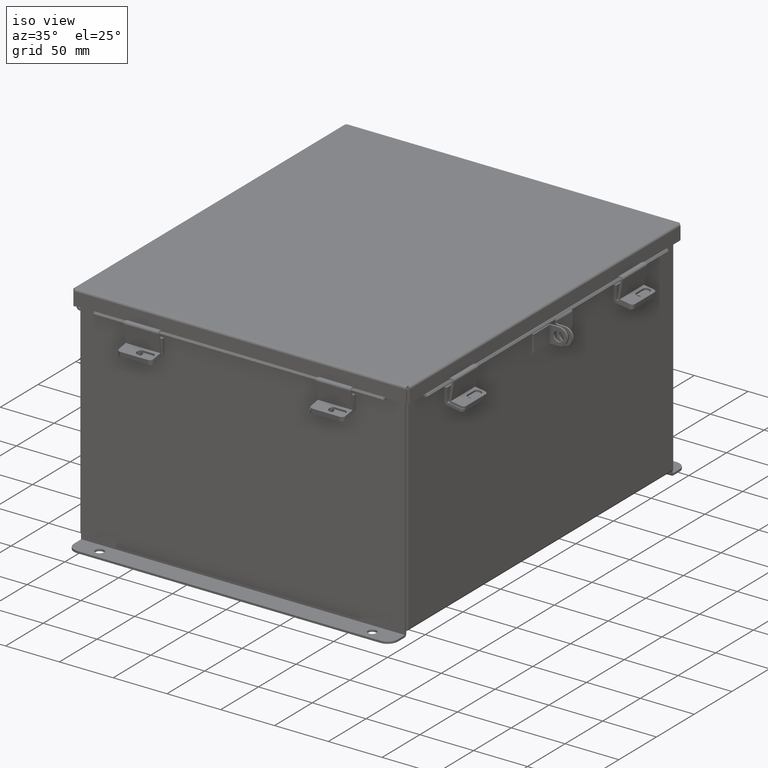
[diagram: clean part render]
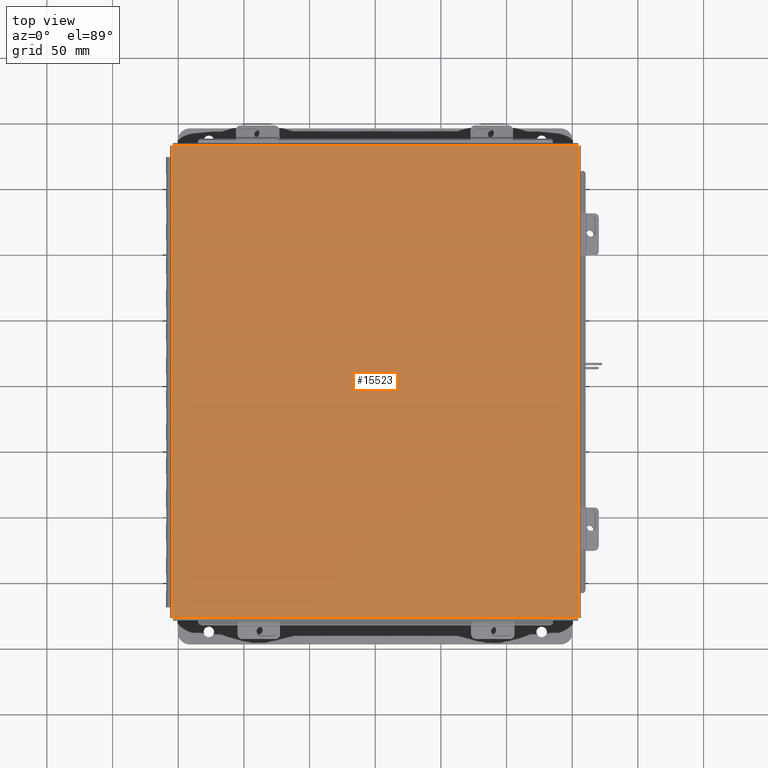
[diagram: tour spotlight — one face highlighted and labeled with its STEP entity id]
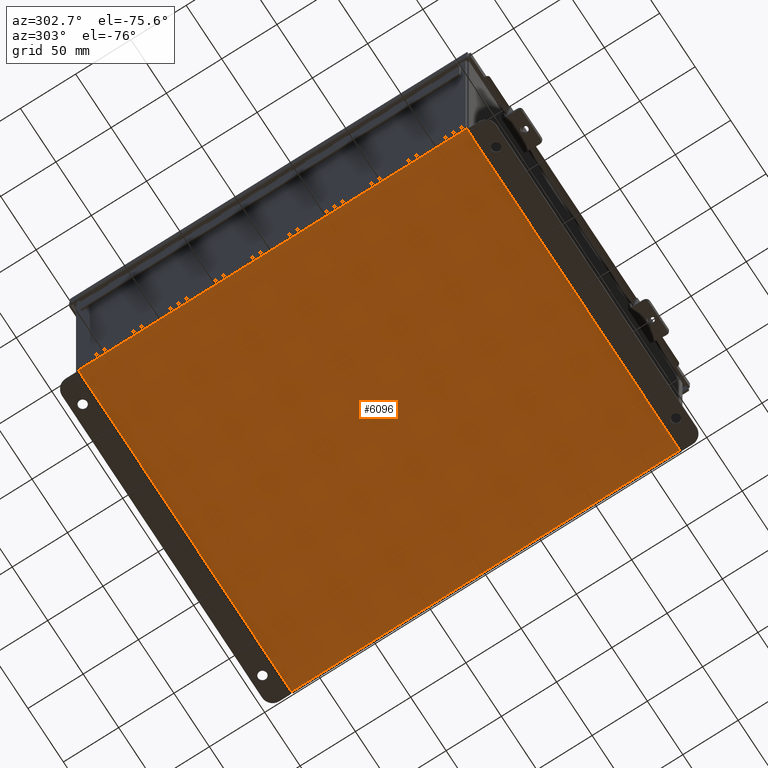
[diagram: tour spotlight — one face highlighted and labeled with its STEP entity id]
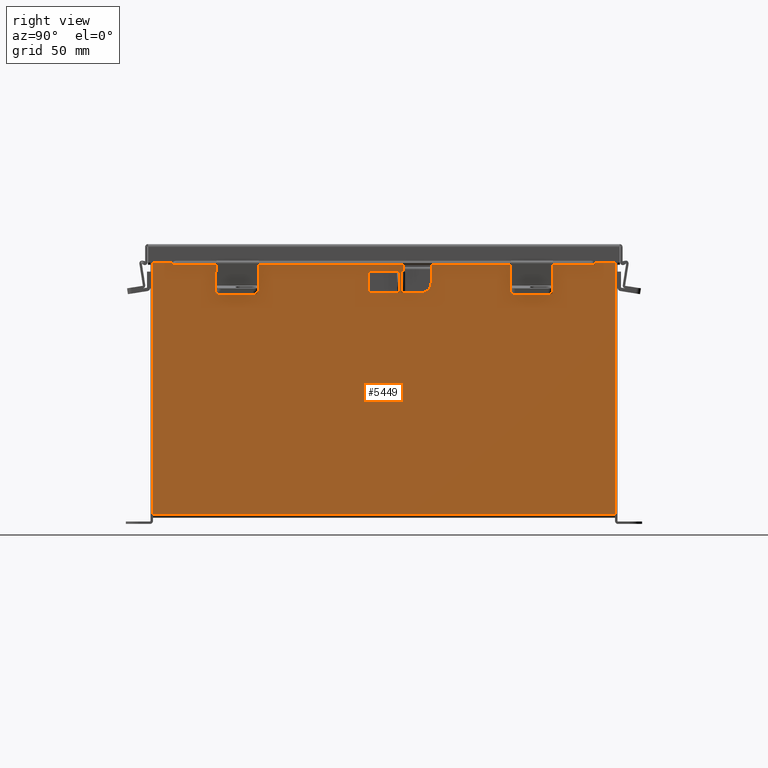
[diagram: tour spotlight — one face highlighted and labeled with its STEP entity id]
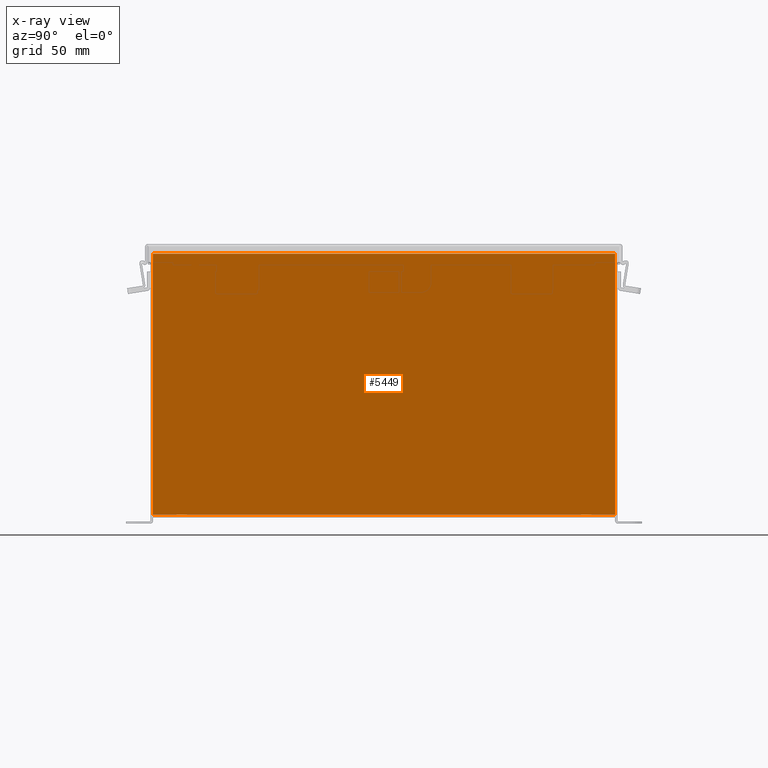
[diagram: x-ray of the same camera — body ghosted, this tour face saturated]
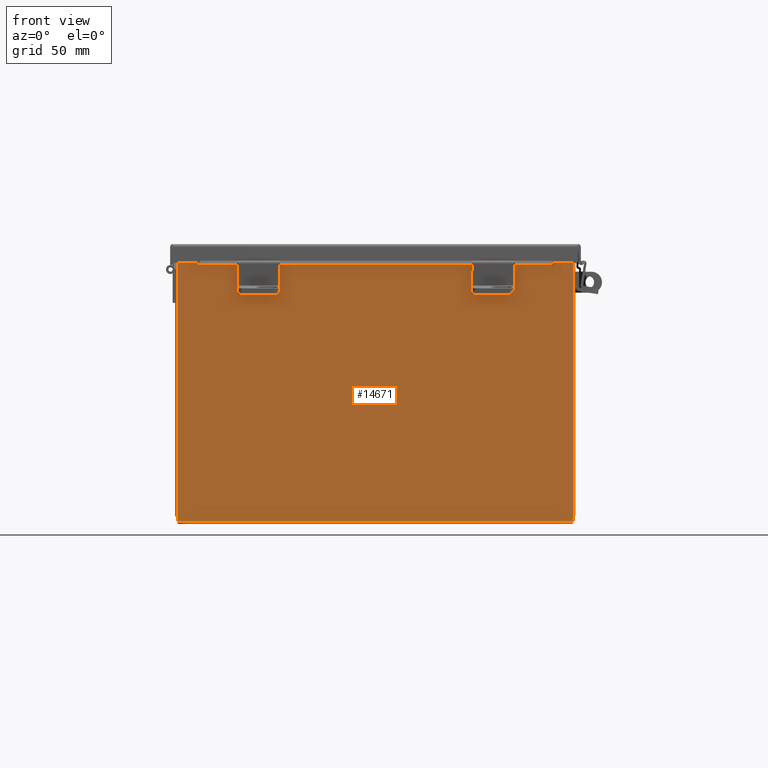
[diagram: tour spotlight — one face highlighted and labeled with its STEP entity id]
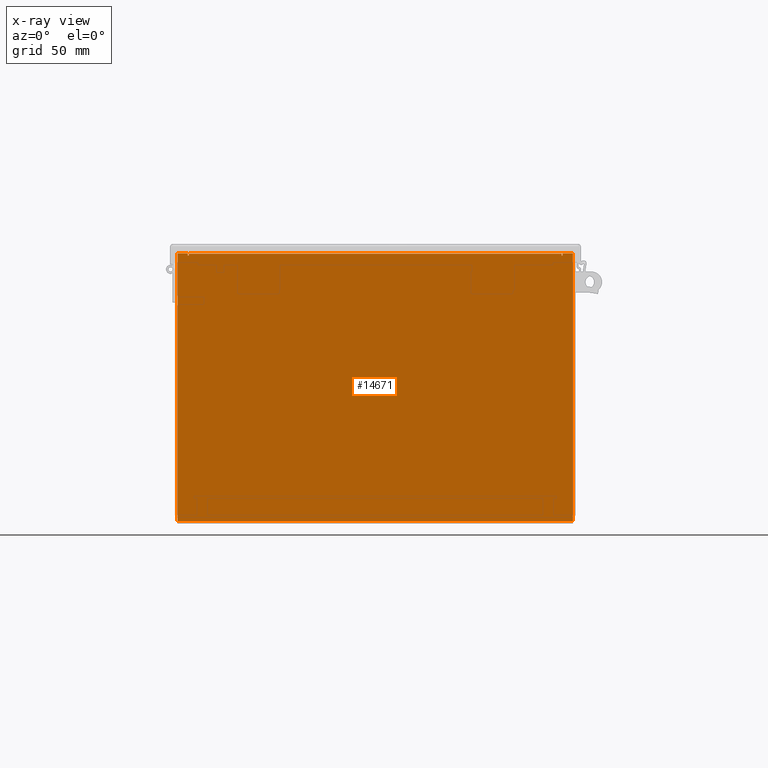
[diagram: x-ray of the same camera — body ghosted, this tour face saturated]
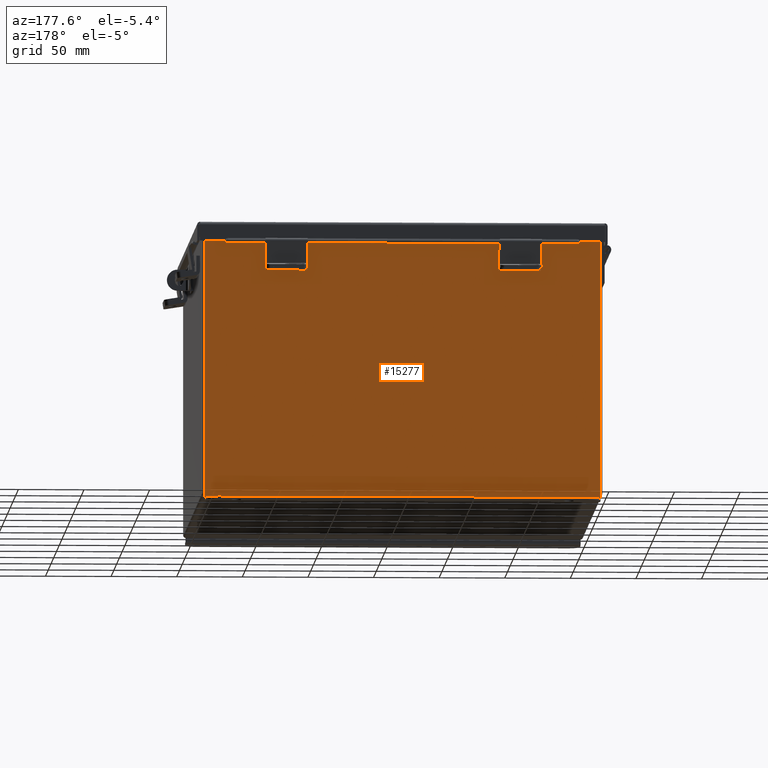
[diagram: tour spotlight — one face highlighted and labeled with its STEP entity id]
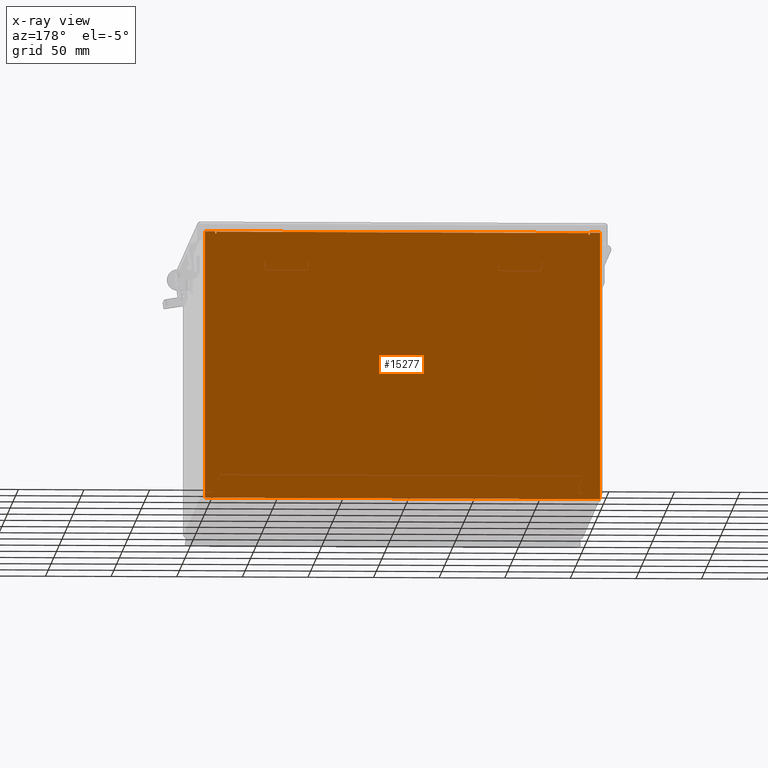
[diagram: x-ray of the same camera — body ghosted, this tour face saturated]
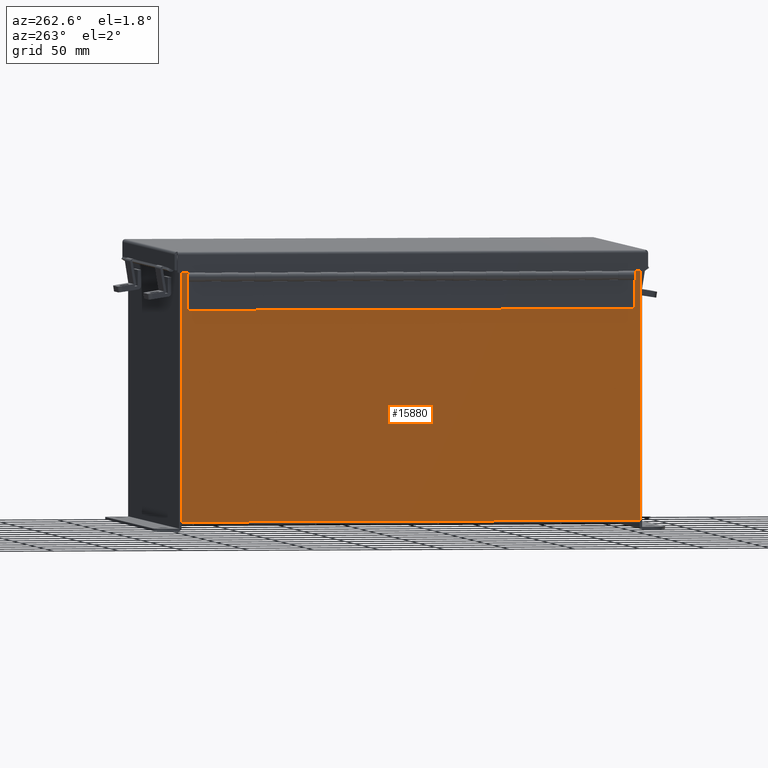
[diagram: tour spotlight — one face highlighted and labeled with its STEP entity id]
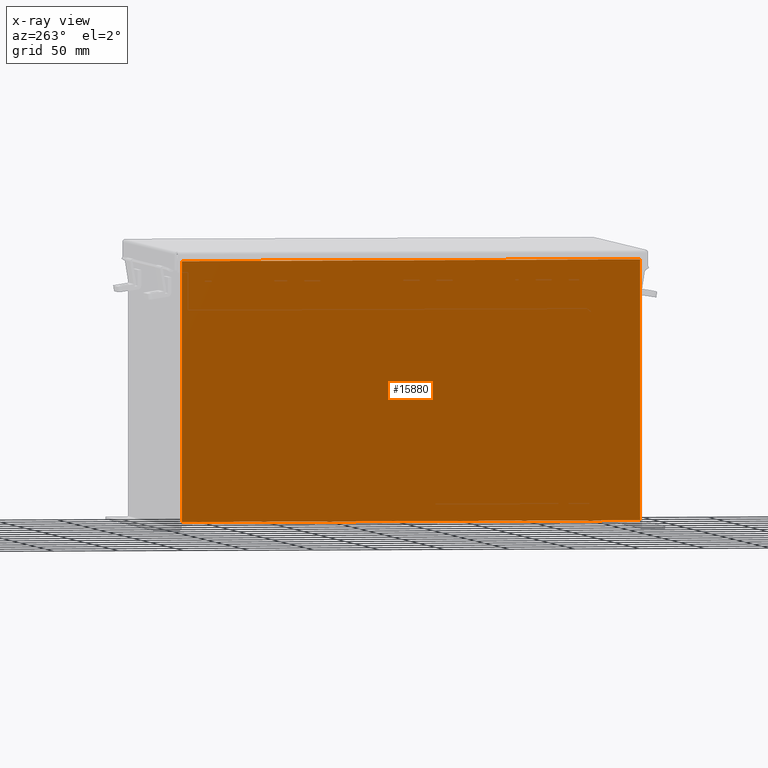
[diagram: x-ray of the same camera — body ghosted, this tour face saturated]
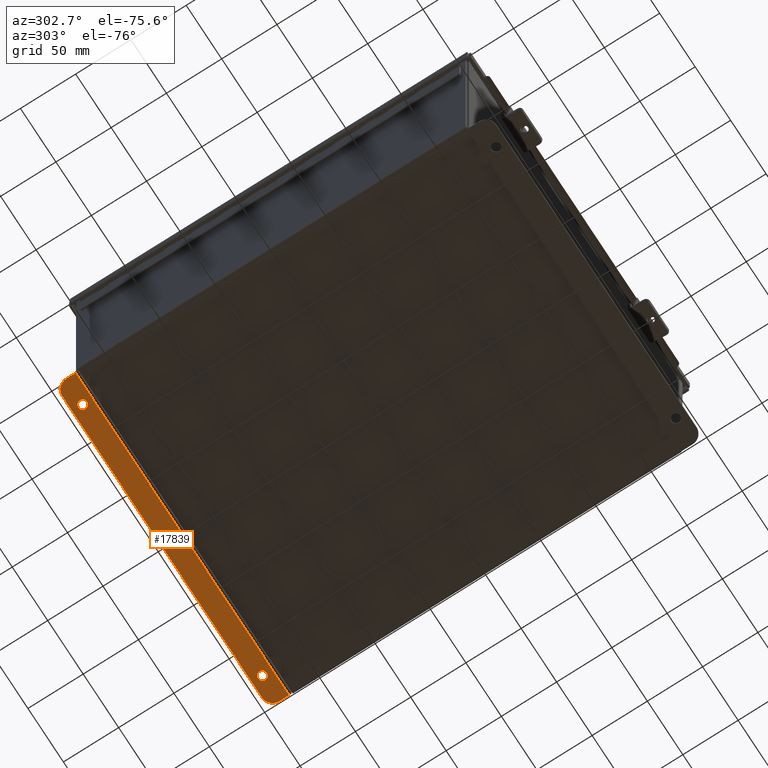
[diagram: tour spotlight — one face highlighted and labeled with its STEP entity id]
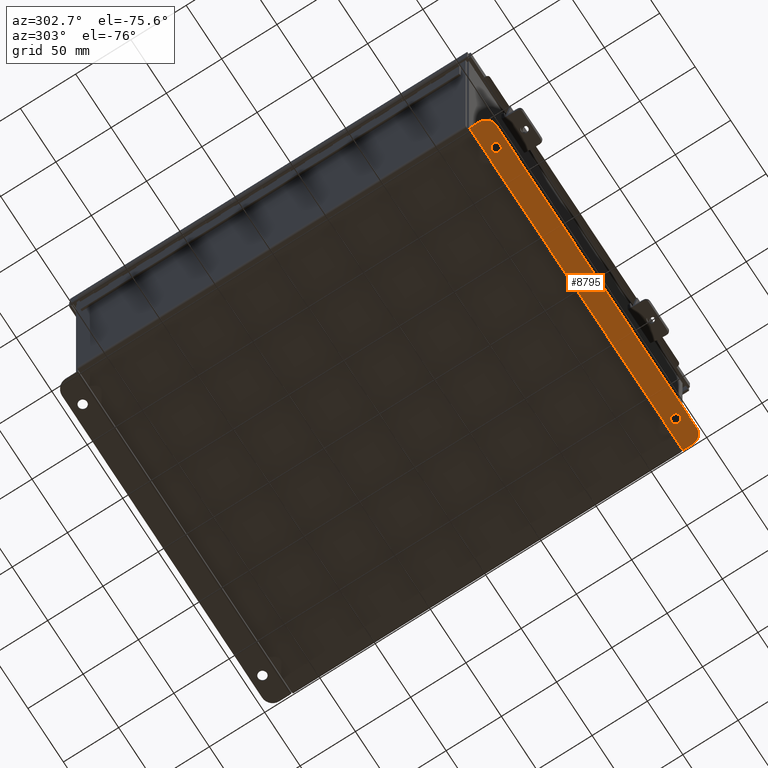
[diagram: tour spotlight — one face highlighted and labeled with its STEP entity id]
A machine part: a face-by-face anatomy tour. The part has 806 B-rep faces; the first image is the clean iso view, then the 8 largest visible faces are spotlighted one at a time (largest first), each with its STEP entity span.

Face 1 — top view, entity #15523. In plain terms, the highlighted planar face has unit normal (-0, -0, 1).
Definition (entity closure, byte-faithful):
#158 = CARTESIAN_POINT ( 'NONE',  ( 6.074478932188137400, -7.068550000000001000, -0.07469999999999993300 ) ) ;
#407 = EDGE_CURVE ( 'NONE', #14482, #13419, #12668, .T. ) ;
#1099 = EDGE_CURVE ( 'NONE', #13419, #18263, #2754, .T. ) ;
#2564 = VERTEX_POINT ( 'NONE', #4363 ) ;
#2754 = LINE ( 'NONE', #158, #13746 ) ;
#3714 = CARTESIAN_POINT ( 'NONE',  ( 0.0000000000000000000, 0.0000000000000000000, -0.07470000000000000300 ) ) ;
#3829 = ORIENTED_EDGE ( 'NONE', *, *, #1099, .T. ) ;
#4363 = CARTESIAN_POINT ( 'NONE',  ( -6.068550000000000100, 7.068549999999999200, -0.07469999999999993300 ) ) ;
#4495 = CARTESIAN_POINT ( 'NONE',  ( 6.068550000000000100, 7.074478932188133800, -0.07469999999999939200 ) ) ;
#4723 = ORIENTED_EDGE ( 'NONE', *, *, #407, .T. ) ;
#4886 = ORIENTED_EDGE ( 'NONE', *, *, #6687, .T. ) ;
#5187 = DIRECTION ( 'NONE',  ( -1.000000000000000000, 0.0000000000000000000, -0.0000000000000000000 ) ) ;
#5408 = EDGE_LOOP ( 'NONE', ( #4886, #4723, #3829, #10692 ) ) ;
#6687 = EDGE_CURVE ( 'NONE', #2564, #14482, #15124, .T. ) ;
#7091 = CARTESIAN_POINT ( 'NONE',  ( -6.068550000000000100, -7.074478932188136500, -0.07470000000000107100 ) ) ;
#7375 = DIRECTION ( 'NONE',  ( -0.0000000000000000000, -1.000000000000000000, -0.0000000000000000000 ) ) ;
#8524 = LINE ( 'NONE', #7091, #16569 ) ;
#8849 = VECTOR ( 'NONE', #7375, 39.37007874015748100 ) ;
#9837 = AXIS2_PLACEMENT_3D ( 'NONE', #3714, #13755, #5187 ) ;
#10086 = FACE_OUTER_BOUND ( 'NONE', #5408, .T. ) ;
#10443 = VECTOR ( 'NONE', #15099, 39.37007874015748100 ) ;
#10692 = ORIENTED_EDGE ( 'NONE', *, *, #12556, .T. ) ;
#11179 = CARTESIAN_POINT ( 'NONE',  ( -6.068550000000000100, -7.068550000000001000, -0.07470000000000107100 ) ) ;
#11873 = CARTESIAN_POINT ( 'NONE',  ( 6.068550000000000100, -7.068550000000001000, -0.07469999999999993300 ) ) ;
#12258 = CARTESIAN_POINT ( 'NONE',  ( -6.074478932188137400, 7.068549999999999200, -0.07469999999999993300 ) ) ;
#12333 = PLANE ( 'NONE',  #9837 ) ;
#12556 = EDGE_CURVE ( 'NONE', #18263, #2564, #8524, .T. ) ;
#12668 = LINE ( 'NONE', #4495, #8849 ) ;
#12802 = DIRECTION ( 'NONE',  ( -0.0000000000000000000, 1.000000000000000000, 8.208677865577646300E-017 ) ) ;
#13419 = VERTEX_POINT ( 'NONE', #11873 ) ;
#13746 = VECTOR ( 'NONE', #17350, 39.37007874015748100 ) ;
#13755 = DIRECTION ( 'NONE',  ( 0.0000000000000000000, 0.0000000000000000000, -1.000000000000000000 ) ) ;
#14218 = CARTESIAN_POINT ( 'NONE',  ( 6.068550000000000100, 7.068549999999999200, -0.07469999999999939200 ) ) ;
#14482 = VERTEX_POINT ( 'NONE', #14218 ) ;
#15099 = DIRECTION ( 'NONE',  ( 1.000000000000000000, 0.0000000000000000000, 0.0000000000000000000 ) ) ;
#15124 = LINE ( 'NONE', #12258, #10443 ) ;
#15523 = ADVANCED_FACE ( 'NONE', ( #10086 ), #12333, .T. ) ;
#16569 = VECTOR ( 'NONE', #12802, 39.37007874015748100 ) ;
#17350 = DIRECTION ( 'NONE',  ( -1.000000000000000000, 0.0000000000000000000, 0.0000000000000000000 ) ) ;
#18263 = VERTEX_POINT ( 'NONE', #11179 ) ;

Face 2 — auxiliary view, entity #6096. In plain terms, the highlighted planar face has unit normal (0, 0, -1).
Definition (entity closure, byte-faithful):
#1332 = LINE ( 'NONE', #12009, #12822 ) ;
#1574 = CARTESIAN_POINT ( 'NONE',  ( 5.912300000000000100, -6.925300000000000900, -0.07470000000000000300 ) ) ;
#1881 = DIRECTION ( 'NONE',  ( -1.000000000000000000, -0.0000000000000000000, -0.0000000000000000000 ) ) ;
#2579 = EDGE_CURVE ( 'NONE', #10511, #15172, #6988, .T. ) ;
#3143 = VECTOR ( 'NONE', #7256, 39.37007874015748100 ) ;
#5226 = CARTESIAN_POINT ( 'NONE',  ( -5.912300000000000100, 6.925299999999998200, -0.07470000000000000300 ) ) ;
#5522 = LINE ( 'NONE', #7930, #9356 ) ;
#6077 = VECTOR ( 'NONE', #11808, 39.37007874015748100 ) ;
#6096 = ADVANCED_FACE ( 'NONE', ( #11351 ), #14449, .T. ) ;
#6988 = LINE ( 'NONE', #14383, #3143 ) ;
#7256 = DIRECTION ( 'NONE',  ( -0.0000000000000000000, -1.000000000000000000, -0.0000000000000000000 ) ) ;
#7327 = DIRECTION ( 'NONE',  ( -1.000000000000000000, 0.0000000000000000000, -0.0000000000000000000 ) ) ;
#7670 = EDGE_LOOP ( 'NONE', ( #11322, #15004, #10319, #9758 ) ) ;
#7930 = CARTESIAN_POINT ( 'NONE',  ( -6.000000000000000900, -6.925300000000000900, -0.07470000000000000300 ) ) ;
#9356 = VECTOR ( 'NONE', #10804, 39.37007874015748100 ) ;
#9758 = ORIENTED_EDGE ( 'NONE', *, *, #10661, .T. ) ;
#10319 = ORIENTED_EDGE ( 'NONE', *, *, #17861, .F. ) ;
#10376 = CARTESIAN_POINT ( 'NONE',  ( -5.912300000000000100, -6.925300000000000900, -0.07469999999999994700 ) ) ;
#10511 = VERTEX_POINT ( 'NONE', #15731 ) ;
#10661 = EDGE_CURVE ( 'NONE', #11945, #17953, #13707, .T. ) ;
#10756 = EDGE_CURVE ( 'NONE', #10511, #17953, #1332, .T. ) ;
#10804 = DIRECTION ( 'NONE',  ( 1.000000000000000000, 0.0000000000000000000, 0.0000000000000000000 ) ) ;
#11322 = ORIENTED_EDGE ( 'NONE', *, *, #10756, .F. ) ;
#11351 = FACE_OUTER_BOUND ( 'NONE', #7670, .T. ) ;
#11808 = DIRECTION ( 'NONE',  ( -0.0000000000000000000, 1.000000000000000000, -0.0000000000000000000 ) ) ;
#11945 = VERTEX_POINT ( 'NONE', #14762 ) ;
#12009 = CARTESIAN_POINT ( 'NONE',  ( -6.000000000000000900, 6.925299999999998200, -0.07470000000000000300 ) ) ;
#12822 = VECTOR ( 'NONE', #1881, 39.37007874015748100 ) ;
#13707 = LINE ( 'NONE', #10376, #6077 ) ;
#14383 = CARTESIAN_POINT ( 'NONE',  ( 5.912300000000000100, 6.925299999999998200, -0.07469999999999994700 ) ) ;
#14449 = PLANE ( 'NONE',  #14858 ) ;
#14762 = CARTESIAN_POINT ( 'NONE',  ( -5.912300000000000100, -6.925299999999999100, -0.07469999999999994700 ) ) ;
#14858 = AXIS2_PLACEMENT_3D ( 'NONE', #17275, #15878, #7327 ) ;
#15004 = ORIENTED_EDGE ( 'NONE', *, *, #2579, .T. ) ;
#15172 = VERTEX_POINT ( 'NONE', #1574 ) ;
#15731 = CARTESIAN_POINT ( 'NONE',  ( 5.912300000000000100, 6.925299999999996500, -0.07469999999999994700 ) ) ;
#15878 = DIRECTION ( 'NONE',  ( 0.0000000000000000000, 0.0000000000000000000, -1.000000000000000000 ) ) ;
#17275 = CARTESIAN_POINT ( 'NONE',  ( 0.0000000000000000000, 0.0000000000000000000, -0.07470000000000000300 ) ) ;
#17861 = EDGE_CURVE ( 'NONE', #11945, #15172, #5522, .T. ) ;
#17953 = VERTEX_POINT ( 'NONE', #5226 ) ;

Face 3 — right view, entity #5449. An x-ray twin of the same camera follows (body ghosted, this face saturated) — the face is partly hidden behind the body. In plain terms, the highlighted planar face has unit normal (-1, 0, 0).
Definition (entity closure, byte-faithful):
#151 = VECTOR ( 'NONE', #5350, 39.37007874015748100 ) ;
#259 = VERTEX_POINT ( 'NONE', #12503 ) ;
#343 = ORIENTED_EDGE ( 'NONE', *, *, #13842, .T. ) ;
#717 = LINE ( 'NONE', #3637, #15066 ) ;
#769 = DIRECTION ( 'NONE',  ( -0.0000000000000000000, -1.000000000000000000, -0.0000000000000000000 ) ) ;
#1039 = VECTOR ( 'NONE', #18512, 39.37007874015748100 ) ;
#1089 = VECTOR ( 'NONE', #769, 39.37007874015748100 ) ;
#3637 = CARTESIAN_POINT ( 'NONE',  ( 6.000000000000000900, -6.925300000000000900, 0.01299999999999984700 ) ) ;
#3786 = VERTEX_POINT ( 'NONE', #8543 ) ;
#5095 = DIRECTION ( 'NONE',  ( -0.0000000000000000000, -1.000000000000000000, -0.0000000000000000000 ) ) ;
#5105 = ORIENTED_EDGE ( 'NONE', *, *, #9582, .F. ) ;
#5350 = DIRECTION ( 'NONE',  ( 3.479795166820706300E-015, -1.391918066728282600E-016, 1.000000000000000000 ) ) ;
#5449 = ADVANCED_FACE ( 'NONE', ( #17425 ), #17354, .F. ) ;
#5758 = LINE ( 'NONE', #17050, #1039 ) ;
#7899 = CARTESIAN_POINT ( 'NONE',  ( 6.000000000000027500, 6.925299999999996500, 7.837599999999999200 ) ) ;
#7924 = AXIS2_PLACEMENT_3D ( 'NONE', #13113, #17421, #8864 ) ;
#8543 = CARTESIAN_POINT ( 'NONE',  ( 6.000000000000027500, -6.925300000000000900, 7.837599999999999200 ) ) ;
#8864 = DIRECTION ( 'NONE',  ( 3.479795166820705900E-015, 0.0000000000000000000, 1.000000000000000000 ) ) ;
#9205 = LINE ( 'NONE', #7899, #1089 ) ;
#9410 = CARTESIAN_POINT ( 'NONE',  ( 6.000000000000000900, 6.925299999999996500, 0.01299999999999984700 ) ) ;
#9582 = EDGE_CURVE ( 'NONE', #14830, #259, #717, .T. ) ;
#11620 = LINE ( 'NONE', #18316, #151 ) ;
#12499 = ORIENTED_EDGE ( 'NONE', *, *, #16132, .T. ) ;
#12503 = CARTESIAN_POINT ( 'NONE',  ( 6.000000000000000900, -6.925300000000000900, 0.01299999999999984700 ) ) ;
#12645 = VERTEX_POINT ( 'NONE', #14451 ) ;
#13113 = CARTESIAN_POINT ( 'NONE',  ( 6.000000000000000900, 0.0000000000000000000, -2.113958465693582200E-014 ) ) ;
#13842 = EDGE_CURVE ( 'NONE', #3786, #259, #5758, .T. ) ;
#14451 = CARTESIAN_POINT ( 'NONE',  ( 6.000000000000027500, 6.925299999999994700, 7.837599999999999200 ) ) ;
#14825 = EDGE_CURVE ( 'NONE', #12645, #3786, #9205, .T. ) ;
#14830 = VERTEX_POINT ( 'NONE', #9410 ) ;
#15066 = VECTOR ( 'NONE', #5095, 39.37007874015748100 ) ;
#16049 = EDGE_LOOP ( 'NONE', ( #16745, #343, #5105, #12499 ) ) ;
#16132 = EDGE_CURVE ( 'NONE', #14830, #12645, #11620, .T. ) ;
#16745 = ORIENTED_EDGE ( 'NONE', *, *, #14825, .T. ) ;
#17050 = CARTESIAN_POINT ( 'NONE',  ( 6.000000000000000900, -6.925300000000000900, -2.113958465693582200E-014 ) ) ;
#17354 = PLANE ( 'NONE',  #7924 ) ;
#17421 = DIRECTION ( 'NONE',  ( -1.000000000000000000, 0.0000000000000000000, 3.479795166820705900E-015 ) ) ;
#17425 = FACE_OUTER_BOUND ( 'NONE', #16049, .T. ) ;
#18316 = CARTESIAN_POINT ( 'NONE',  ( 6.000000000000000900, 6.925299999999998200, -2.017563963818448200E-014 ) ) ;
#18512 = DIRECTION ( 'NONE',  ( -3.479795166820706300E-015, 0.0000000000000000000, -1.000000000000000000 ) ) ;

Face 4 — front view, entity #14671. An x-ray twin of the same camera follows (body ghosted, this face saturated) — the face is partly hidden behind the body. In plain terms, the highlighted planar face has unit normal (-0, 1, -0).
Definition (entity closure, byte-faithful):
#15 = ORIENTED_EDGE ( 'NONE', *, *, #9010, .T. ) ;
#213 = CARTESIAN_POINT ( 'NONE',  ( 5.925299999999999100, -9.177301853715884100E-017, -4.099299999999999500 ) ) ;
#701 = CARTESIAN_POINT ( 'NONE',  ( 5.600974999999998300, 0.0000000000000000000, 3.874949999999998300 ) ) ;
#1090 = ORIENTED_EDGE ( 'NONE', *, *, #15202, .F. ) ;
#1618 = VECTOR ( 'NONE', #1763, 39.37007874015748100 ) ;
#1653 = ORIENTED_EDGE ( 'NONE', *, *, #5272, .T. ) ;
#1763 = DIRECTION ( 'NONE',  ( 0.0000000000000000000, 0.0000000000000000000, -1.000000000000000000 ) ) ;
#1833 = LINE ( 'NONE', #12332, #13310 ) ;
#1958 = VERTEX_POINT ( 'NONE', #213 ) ;
#2147 = DIRECTION ( 'NONE',  ( 0.0000000000000000000, 0.0000000000000000000, -1.000000000000000000 ) ) ;
#2378 = ORIENTED_EDGE ( 'NONE', *, *, #8132, .F. ) ;
#2456 = VERTEX_POINT ( 'NONE', #8453 ) ;
#2646 = LINE ( 'NONE', #6446, #9843 ) ;
#2833 = EDGE_CURVE ( 'NONE', #5984, #14131, #6750, .T. ) ;
#2876 = LINE ( 'NONE', #3029, #10515 ) ;
#2923 = VERTEX_POINT ( 'NONE', #3712 ) ;
#3029 = CARTESIAN_POINT ( 'NONE',  ( 5.619649999999914800, -0.0000000000000000000, -1.219624991268699400E-013 ) ) ;
#3707 = EDGE_CURVE ( 'NONE', #14970, #1958, #12322, .T. ) ;
#3712 = CARTESIAN_POINT ( 'NONE',  ( -5.619650000000000000, 0.0000000000000000000, 3.925299999999999600 ) ) ;
#3915 = CARTESIAN_POINT ( 'NONE',  ( -5.925300000000000000, -9.177301853715884100E-017, -4.099299999999999500 ) ) ;
#4159 = EDGE_CURVE ( 'NONE', #2456, #8572, #2646, .T. ) ;
#4232 = DIRECTION ( 'NONE',  ( -0.0000000000000000000, -0.0000000000000000000, 1.000000000000000000 ) ) ;
#4413 = CARTESIAN_POINT ( 'NONE',  ( -5.619650000000000000, -0.0000000000000000000, 0.0000000000000000000 ) ) ;
#5084 = CARTESIAN_POINT ( 'NONE',  ( -5.925300000000001800, 0.0000000000000000000, 3.925299999999999600 ) ) ;
#5272 = EDGE_CURVE ( 'NONE', #16587, #2923, #16303, .T. ) ;
#5672 = CARTESIAN_POINT ( 'NONE',  ( -5.582300000000000900, 2.287922694693820400E-015, 3.912299999999998800 ) ) ;
#5788 = CARTESIAN_POINT ( 'NONE',  ( 5.582299999999999200, 0.0000000000000000000, 3.912299999999998800 ) ) ;
#5984 = VERTEX_POINT ( 'NONE', #15624 ) ;
#6205 = CARTESIAN_POINT ( 'NONE',  ( 5.582299999999999200, 0.0000000000000000000, 3.874949999999998300 ) ) ;
#6214 = CARTESIAN_POINT ( 'NONE',  ( -5.600975000000000000, 0.0000000000000000000, 3.874949999999998300 ) ) ;
#6446 = CARTESIAN_POINT ( 'NONE',  ( -5.582300000000000000, -0.0000000000000000000, 0.0000000000000000000 ) ) ;
#6622 = VECTOR ( 'NONE', #6791, 39.37007874015748100 ) ;
#6750 = CIRCLE ( 'NONE', #14344, 0.01867500000000003900 ) ;
#6791 = DIRECTION ( 'NONE',  ( 0.0000000000000000000, 0.0000000000000000000, 1.000000000000000000 ) ) ;
#6912 = CARTESIAN_POINT ( 'NONE',  ( -5.925300000000001800, -9.177301853715884100E-017, -4.099299999999999500 ) ) ;
#7111 = DIRECTION ( 'NONE',  ( 1.000000000000000000, 0.0000000000000000000, 0.0000000000000000000 ) ) ;
#7439 = VERTEX_POINT ( 'NONE', #18432 ) ;
#7504 = ORIENTED_EDGE ( 'NONE', *, *, #15115, .T. ) ;
#7663 = DIRECTION ( 'NONE',  ( 0.0000000000000000000, 0.0000000000000000000, -1.000000000000000000 ) ) ;
#7907 = DIRECTION ( 'NONE',  ( 0.0000000000000000000, 0.0000000000000000000, -1.000000000000000000 ) ) ;
#8132 = EDGE_CURVE ( 'NONE', #14131, #10525, #14239, .T. ) ;
#8453 = CARTESIAN_POINT ( 'NONE',  ( -5.582300000000000000, 2.287922694693820400E-015, 3.912299999999998800 ) ) ;
#8506 = VECTOR ( 'NONE', #11228, 39.37007874015748100 ) ;
#8572 = VERTEX_POINT ( 'NONE', #16644 ) ;
#8711 = VECTOR ( 'NONE', #15351, 39.37007874015748100 ) ;
#8901 = DIRECTION ( 'NONE',  ( 0.0000000000000000000, -0.0000000000000000000, -1.000000000000000000 ) ) ;
#8993 = AXIS2_PLACEMENT_3D ( 'NONE', #11705, #17461, #8901 ) ;
#9010 = EDGE_CURVE ( 'NONE', #7439, #1958, #16447, .T. ) ;
#9134 = VECTOR ( 'NONE', #14418, 39.37007874015748100 ) ;
#9241 = EDGE_CURVE ( 'NONE', #15997, #7439, #1833, .T. ) ;
#9456 = EDGE_CURVE ( 'NONE', #8572, #15582, #13969, .T. ) ;
#9843 = VECTOR ( 'NONE', #7907, 39.37007874015748100 ) ;
#10014 = VECTOR ( 'NONE', #7111, 39.37007874015748100 ) ;
#10515 = VECTOR ( 'NONE', #13083, 39.37007874015748100 ) ;
#10525 = VERTEX_POINT ( 'NONE', #5788 ) ;
#10712 = ORIENTED_EDGE ( 'NONE', *, *, #17494, .T. ) ;
#10755 = DIRECTION ( 'NONE',  ( -0.0000000000000000000, 1.000000000000000000, -0.0000000000000000000 ) ) ;
#11129 = ORIENTED_EDGE ( 'NONE', *, *, #2833, .F. ) ;
#11228 = DIRECTION ( 'NONE',  ( 1.000000000000000000, -0.0000000000000000000, -0.0000000000000000000 ) ) ;
#11538 = EDGE_LOOP ( 'NONE', ( #15615, #17716, #16645, #10712, #2378, #11129, #1090, #12582, #15, #17177, #7504, #1653 ) ) ;
#11705 = CARTESIAN_POINT ( 'NONE',  ( 0.0000000000000000000, 0.0000000000000000000, 0.0000000000000000000 ) ) ;
#11855 = VECTOR ( 'NONE', #4232, 39.37007874015748100 ) ;
#12314 = CARTESIAN_POINT ( 'NONE',  ( 5.619650000000000000, 0.0000000000000000000, 3.925299999999999600 ) ) ;
#12322 = LINE ( 'NONE', #6912, #8506 ) ;
#12325 = LINE ( 'NONE', #14251, #11855 ) ;
#12332 = CARTESIAN_POINT ( 'NONE',  ( -5.925300000000001800, 0.0000000000000000000, 3.925299999999999600 ) ) ;
#12558 = CARTESIAN_POINT ( 'NONE',  ( 5.582299999999999200, 0.0000000000000000000, 0.0000000000000000000 ) ) ;
#12582 = ORIENTED_EDGE ( 'NONE', *, *, #9241, .T. ) ;
#12932 = LINE ( 'NONE', #4413, #9134 ) ;
#13083 = DIRECTION ( 'NONE',  ( -2.170286390199955400E-014, 0.0000000000000000000, -1.000000000000000000 ) ) ;
#13264 = CARTESIAN_POINT ( 'NONE',  ( 5.925299999999999100, 0.0000000000000000000, 3.925299999999999600 ) ) ;
#13310 = VECTOR ( 'NONE', #13754, 39.37007874015748100 ) ;
#13754 = DIRECTION ( 'NONE',  ( 1.000000000000000000, 0.0000000000000000000, 0.0000000000000000000 ) ) ;
#13969 = CIRCLE ( 'NONE', #17170, 0.01867500000000003900 ) ;
#14131 = VERTEX_POINT ( 'NONE', #6205 ) ;
#14239 = LINE ( 'NONE', #12558, #6622 ) ;
#14251 = CARTESIAN_POINT ( 'NONE',  ( -5.925300000000001800, 0.0000000000000000000, 3.925299999999999600 ) ) ;
#14344 = AXIS2_PLACEMENT_3D ( 'NONE', #701, #10755, #2147 ) ;
#14418 = DIRECTION ( 'NONE',  ( 0.0000000000000000000, 0.0000000000000000000, 1.000000000000000000 ) ) ;
#14575 = PLANE ( 'NONE',  #8993 ) ;
#14671 = ADVANCED_FACE ( 'NONE', ( #15222 ), #14575, .F. ) ;
#14702 = LINE ( 'NONE', #5672, #10014 ) ;
#14970 = VERTEX_POINT ( 'NONE', #3915 ) ;
#15115 = EDGE_CURVE ( 'NONE', #14970, #16587, #12325, .T. ) ;
#15202 = EDGE_CURVE ( 'NONE', #15997, #5984, #2876, .T. ) ;
#15222 = FACE_OUTER_BOUND ( 'NONE', #11538, .T. ) ;
#15351 = DIRECTION ( 'NONE',  ( 1.000000000000000000, 0.0000000000000000000, 0.0000000000000000000 ) ) ;
#15582 = VERTEX_POINT ( 'NONE', #18403 ) ;
#15615 = ORIENTED_EDGE ( 'NONE', *, *, #17582, .F. ) ;
#15624 = CARTESIAN_POINT ( 'NONE',  ( 5.619649999999998300, 0.0000000000000000000, 3.874949999999998300 ) ) ;
#15997 = VERTEX_POINT ( 'NONE', #12314 ) ;
#16225 = DIRECTION ( 'NONE',  ( -0.0000000000000000000, 1.000000000000000000, -0.0000000000000000000 ) ) ;
#16303 = LINE ( 'NONE', #17957, #8711 ) ;
#16447 = LINE ( 'NONE', #13264, #1618 ) ;
#16587 = VERTEX_POINT ( 'NONE', #5084 ) ;
#16644 = CARTESIAN_POINT ( 'NONE',  ( -5.582300000000000000, -0.0000000000000000000, 3.874949999999998300 ) ) ;
#16645 = ORIENTED_EDGE ( 'NONE', *, *, #4159, .F. ) ;
#17170 = AXIS2_PLACEMENT_3D ( 'NONE', #6214, #16225, #7663 ) ;
#17177 = ORIENTED_EDGE ( 'NONE', *, *, #3707, .F. ) ;
#17461 = DIRECTION ( 'NONE',  ( 0.0000000000000000000, -1.000000000000000000, 0.0000000000000000000 ) ) ;
#17494 = EDGE_CURVE ( 'NONE', #2456, #10525, #14702, .T. ) ;
#17582 = EDGE_CURVE ( 'NONE', #15582, #2923, #12932, .T. ) ;
#17716 = ORIENTED_EDGE ( 'NONE', *, *, #9456, .F. ) ;
#17957 = CARTESIAN_POINT ( 'NONE',  ( -5.925300000000001800, 0.0000000000000000000, 3.925299999999999600 ) ) ;
#18403 = CARTESIAN_POINT ( 'NONE',  ( -5.619650000000000000, 0.0000000000000000000, 3.874949999999998300 ) ) ;
#18432 = CARTESIAN_POINT ( 'NONE',  ( 5.925299999999999100, 0.0000000000000000000, 3.925299999999999600 ) ) ;

Face 5 — auxiliary view, entity #15277. An x-ray twin of the same camera follows (body ghosted, this face saturated) — the face is partly hidden behind the body. In plain terms, the highlighted planar face has unit normal (0, -1, 0).
Definition (entity closure, byte-faithful):
#403 = VERTEX_POINT ( 'NONE', #10187 ) ;
#777 = CIRCLE ( 'NONE', #18621, 0.01867500000000003900 ) ;
#829 = VECTOR ( 'NONE', #18170, 39.37007874015748100 ) ;
#1746 = VERTEX_POINT ( 'NONE', #3043 ) ;
#1767 = LINE ( 'NONE', #8863, #8087 ) ;
#1914 = CARTESIAN_POINT ( 'NONE',  ( 5.582299999999999200, 0.0000000000000000000, 3.912299999999998800 ) ) ;
#1933 = CARTESIAN_POINT ( 'NONE',  ( -5.600975000000000000, 0.0000000000000000000, 3.874949999999998300 ) ) ;
#2079 = ORIENTED_EDGE ( 'NONE', *, *, #4278, .F. ) ;
#3043 = CARTESIAN_POINT ( 'NONE',  ( -5.925300000000000000, -8.494339855299818500E-016, -4.099300000000000400 ) ) ;
#3082 = DIRECTION ( 'NONE',  ( -0.0000000000000000000, 1.000000000000000000, -0.0000000000000000000 ) ) ;
#3093 = VERTEX_POINT ( 'NONE', #8434 ) ;
#3339 = VECTOR ( 'NONE', #4630, 39.37007874015748100 ) ;
#3402 = DIRECTION ( 'NONE',  ( 0.0000000000000000000, 0.0000000000000000000, -1.000000000000000000 ) ) ;
#4167 = LINE ( 'NONE', #10982, #15573 ) ;
#4278 = EDGE_CURVE ( 'NONE', #17016, #11388, #11834, .T. ) ;
#4396 = CARTESIAN_POINT ( 'NONE',  ( 5.925299999999999100, 1.237868622129119300E-016, -4.099300000000000400 ) ) ;
#4503 = CARTESIAN_POINT ( 'NONE',  ( 5.925299999999999100, 0.0000000000000000000, 3.925299999999999600 ) ) ;
#4571 = CARTESIAN_POINT ( 'NONE',  ( -5.619650000000000000, -0.0000000000000000000, 0.0000000000000000000 ) ) ;
#4630 = DIRECTION ( 'NONE',  ( 0.0000000000000000000, 0.0000000000000000000, 1.000000000000000000 ) ) ;
#4637 = CARTESIAN_POINT ( 'NONE',  ( -5.925300000000001800, 0.0000000000000000000, 3.925299999999999100 ) ) ;
#4855 = VERTEX_POINT ( 'NONE', #7814 ) ;
#5162 = EDGE_CURVE ( 'NONE', #16981, #18455, #10945, .T. ) ;
#5625 = ORIENTED_EDGE ( 'NONE', *, *, #6556, .F. ) ;
#5763 = CARTESIAN_POINT ( 'NONE',  ( -5.925300000000001800, 0.0000000000000000000, 3.925299999999999100 ) ) ;
#5799 = VERTEX_POINT ( 'NONE', #13843 ) ;
#5875 = VECTOR ( 'NONE', #14639, 39.37007874015748100 ) ;
#5952 = DIRECTION ( 'NONE',  ( 1.000000000000000000, 8.208677865577646300E-017, -0.0000000000000000000 ) ) ;
#5981 = PLANE ( 'NONE',  #9251 ) ;
#6556 = EDGE_CURVE ( 'NONE', #3093, #7399, #777, .T. ) ;
#6737 = CARTESIAN_POINT ( 'NONE',  ( -5.925300000000001800, 0.0000000000000000000, 3.925299999999999100 ) ) ;
#6898 = CARTESIAN_POINT ( 'NONE',  ( -5.619650000000000000, 0.0000000000000000000, 3.874949999999998300 ) ) ;
#6906 = ORIENTED_EDGE ( 'NONE', *, *, #13663, .T. ) ;
#7148 = ORIENTED_EDGE ( 'NONE', *, *, #18502, .F. ) ;
#7399 = VERTEX_POINT ( 'NONE', #6898 ) ;
#7732 = DIRECTION ( 'NONE',  ( 0.0000000000000000000, 0.0000000000000000000, -1.000000000000000000 ) ) ;
#7814 = CARTESIAN_POINT ( 'NONE',  ( 5.619649999999998300, 0.0000000000000000000, 3.874949999999998300 ) ) ;
#8087 = VECTOR ( 'NONE', #13169, 39.37007874015748100 ) ;
#8383 = ORIENTED_EDGE ( 'NONE', *, *, #14680, .F. ) ;
#8434 = CARTESIAN_POINT ( 'NONE',  ( -5.582300000000000000, -0.0000000000000000000, 3.874949999999998300 ) ) ;
#8863 = CARTESIAN_POINT ( 'NONE',  ( -5.925300000000001800, 0.0000000000000000000, 3.925299999999999100 ) ) ;
#8887 = DIRECTION ( 'NONE',  ( 0.0000000000000000000, -0.0000000000000000000, -1.000000000000000000 ) ) ;
#9114 = CARTESIAN_POINT ( 'NONE',  ( 5.619649999999914800, -0.0000000000000000000, -1.219624991268699400E-013 ) ) ;
#9191 = LINE ( 'NONE', #6737, #16325 ) ;
#9251 = AXIS2_PLACEMENT_3D ( 'NONE', #15984, #17446, #8887 ) ;
#9529 = EDGE_LOOP ( 'NONE', ( #8383, #5625, #11542, #6906, #2079, #13564, #15816, #11257, #17520, #7148, #13667, #9891 ) ) ;
#9891 = ORIENTED_EDGE ( 'NONE', *, *, #9963, .T. ) ;
#9963 = EDGE_CURVE ( 'NONE', #13905, #403, #16853, .T. ) ;
#10187 = CARTESIAN_POINT ( 'NONE',  ( -5.619650000000000000, 0.0000000000000000000, 3.925299999999999100 ) ) ;
#10543 = DIRECTION ( 'NONE',  ( -2.170286390199955400E-014, 0.0000000000000000000, -1.000000000000000000 ) ) ;
#10806 = LINE ( 'NONE', #9114, #17981 ) ;
#10945 = LINE ( 'NONE', #13432, #14298 ) ;
#10961 = FACE_OUTER_BOUND ( 'NONE', #9529, .T. ) ;
#10982 = CARTESIAN_POINT ( 'NONE',  ( -5.582300000000000000, -0.0000000000000000000, 0.0000000000000000000 ) ) ;
#10992 = DIRECTION ( 'NONE',  ( 1.000000000000000000, 0.0000000000000000000, 0.0000000000000000000 ) ) ;
#11257 = ORIENTED_EDGE ( 'NONE', *, *, #16064, .T. ) ;
#11296 = EDGE_CURVE ( 'NONE', #1746, #13905, #1767, .T. ) ;
#11374 = EDGE_CURVE ( 'NONE', #5799, #4855, #10806, .T. ) ;
#11383 = LINE ( 'NONE', #15232, #18116 ) ;
#11388 = VERTEX_POINT ( 'NONE', #1914 ) ;
#11542 = ORIENTED_EDGE ( 'NONE', *, *, #17980, .F. ) ;
#11676 = CARTESIAN_POINT ( 'NONE',  ( 5.600974999999998300, 0.0000000000000000000, 3.874949999999998300 ) ) ;
#11769 = VECTOR ( 'NONE', #5952, 39.37007874015748100 ) ;
#11834 = LINE ( 'NONE', #16692, #829 ) ;
#12002 = DIRECTION ( 'NONE',  ( -0.0000000000000000000, 1.000000000000000000, -0.0000000000000000000 ) ) ;
#12488 = CIRCLE ( 'NONE', #17755, 0.01867500000000003900 ) ;
#12496 = DIRECTION ( 'NONE',  ( 0.0000000000000000000, 0.0000000000000000000, -1.000000000000000000 ) ) ;
#13119 = DIRECTION ( 'NONE',  ( 0.0000000000000000000, 0.0000000000000000000, -1.000000000000000000 ) ) ;
#13169 = DIRECTION ( 'NONE',  ( -0.0000000000000000000, -0.0000000000000000000, 1.000000000000000000 ) ) ;
#13432 = CARTESIAN_POINT ( 'NONE',  ( 5.925299999999999100, 0.0000000000000000000, 3.925299999999999600 ) ) ;
#13564 = ORIENTED_EDGE ( 'NONE', *, *, #17605, .F. ) ;
#13663 = EDGE_CURVE ( 'NONE', #15027, #11388, #11383, .T. ) ;
#13667 = ORIENTED_EDGE ( 'NONE', *, *, #11296, .T. ) ;
#13843 = CARTESIAN_POINT ( 'NONE',  ( 5.619650000000000000, 0.0000000000000000000, 3.925299999999999600 ) ) ;
#13905 = VERTEX_POINT ( 'NONE', #5763 ) ;
#14298 = VECTOR ( 'NONE', #7732, 39.37007874015748100 ) ;
#14527 = CARTESIAN_POINT ( 'NONE',  ( -5.925300000000001800, -8.494339855299818500E-016, -4.099300000000000400 ) ) ;
#14639 = DIRECTION ( 'NONE',  ( 1.000000000000000000, 0.0000000000000000000, 4.610480471308225700E-017 ) ) ;
#14668 = LINE ( 'NONE', #14527, #11769 ) ;
#14680 = EDGE_CURVE ( 'NONE', #7399, #403, #14771, .T. ) ;
#14771 = LINE ( 'NONE', #4571, #3339 ) ;
#15027 = VERTEX_POINT ( 'NONE', #15435 ) ;
#15232 = CARTESIAN_POINT ( 'NONE',  ( -5.582300000000000900, 2.287922694693820400E-015, 3.912299999999998800 ) ) ;
#15277 = ADVANCED_FACE ( 'NONE', ( #10961 ), #5981, .F. ) ;
#15435 = CARTESIAN_POINT ( 'NONE',  ( -5.582300000000000000, 2.287922694693820400E-015, 3.912299999999998800 ) ) ;
#15573 = VECTOR ( 'NONE', #12496, 39.37007874015748100 ) ;
#15816 = ORIENTED_EDGE ( 'NONE', *, *, #11374, .F. ) ;
#15984 = CARTESIAN_POINT ( 'NONE',  ( 0.0000000000000000000, 0.0000000000000000000, 0.0000000000000000000 ) ) ;
#16064 = EDGE_CURVE ( 'NONE', #5799, #16981, #9191, .T. ) ;
#16325 = VECTOR ( 'NONE', #18200, 39.37007874015748100 ) ;
#16692 = CARTESIAN_POINT ( 'NONE',  ( 5.582299999999999200, 0.0000000000000000000, 0.0000000000000000000 ) ) ;
#16853 = LINE ( 'NONE', #4637, #5875 ) ;
#16981 = VERTEX_POINT ( 'NONE', #4503 ) ;
#17016 = VERTEX_POINT ( 'NONE', #17447 ) ;
#17446 = DIRECTION ( 'NONE',  ( 0.0000000000000000000, -1.000000000000000000, 0.0000000000000000000 ) ) ;
#17447 = CARTESIAN_POINT ( 'NONE',  ( 5.582299999999999200, 0.0000000000000000000, 3.874949999999998300 ) ) ;
#17520 = ORIENTED_EDGE ( 'NONE', *, *, #5162, .T. ) ;
#17605 = EDGE_CURVE ( 'NONE', #4855, #17016, #12488, .T. ) ;
#17755 = AXIS2_PLACEMENT_3D ( 'NONE', #11676, #3082, #13119 ) ;
#17980 = EDGE_CURVE ( 'NONE', #15027, #3093, #4167, .T. ) ;
#17981 = VECTOR ( 'NONE', #10543, 39.37007874015748100 ) ;
#18116 = VECTOR ( 'NONE', #10992, 39.37007874015748100 ) ;
#18170 = DIRECTION ( 'NONE',  ( 0.0000000000000000000, 0.0000000000000000000, 1.000000000000000000 ) ) ;
#18200 = DIRECTION ( 'NONE',  ( 1.000000000000000000, 0.0000000000000000000, 4.610480471308225700E-017 ) ) ;
#18455 = VERTEX_POINT ( 'NONE', #4396 ) ;
#18502 = EDGE_CURVE ( 'NONE', #1746, #18455, #14668, .T. ) ;
#18621 = AXIS2_PLACEMENT_3D ( 'NONE', #1933, #12002, #3402 ) ;

Face 6 — auxiliary view, entity #15880. An x-ray twin of the same camera follows (body ghosted, this face saturated) — the face is partly hidden behind the body. In plain terms, the highlighted planar face has unit normal (1, 0, 0).
Definition (entity closure, byte-faithful):
#69 = DIRECTION ( 'NONE',  ( -3.479795166820706300E-015, 2.783836133456565100E-016, 1.000000000000000000 ) ) ;
#624 = CARTESIAN_POINT ( 'NONE',  ( -6.000000000000000900, 0.0000000000000000000, -2.113958465693582200E-014 ) ) ;
#2066 = DIRECTION ( 'NONE',  ( 3.479795166820705900E-015, 0.0000000000000000000, -1.000000000000000000 ) ) ;
#2373 = CARTESIAN_POINT ( 'NONE',  ( -6.000000000000000900, 6.925299999999998200, 0.01299999999999984700 ) ) ;
#2705 = LINE ( 'NONE', #8861, #6528 ) ;
#2884 = CARTESIAN_POINT ( 'NONE',  ( -6.000000000000000900, -6.925299999999999100, 0.01299999999999984700 ) ) ;
#4037 = ORIENTED_EDGE ( 'NONE', *, *, #7778, .F. ) ;
#6528 = VECTOR ( 'NONE', #17416, 39.37007874015748100 ) ;
#7778 = EDGE_CURVE ( 'NONE', #13900, #17966, #8665, .T. ) ;
#7795 = PLANE ( 'NONE',  #13312 ) ;
#8245 = DIRECTION ( 'NONE',  ( 3.479795166820706300E-015, 0.0000000000000000000, -1.000000000000000000 ) ) ;
#8665 = LINE ( 'NONE', #11955, #15347 ) ;
#8861 = CARTESIAN_POINT ( 'NONE',  ( -6.000000000000027500, -6.925299999999998200, 7.837599999999999200 ) ) ;
#9570 = CARTESIAN_POINT ( 'NONE',  ( -6.000000000000027500, -6.925299999999997300, 7.837599999999999200 ) ) ;
#10036 = LINE ( 'NONE', #16798, #14288 ) ;
#10137 = EDGE_LOOP ( 'NONE', ( #10386, #17030, #4037, #13580 ) ) ;
#10386 = ORIENTED_EDGE ( 'NONE', *, *, #14006, .T. ) ;
#10670 = DIRECTION ( 'NONE',  ( 1.000000000000000000, 0.0000000000000000000, 3.479795166820705900E-015 ) ) ;
#11275 = CARTESIAN_POINT ( 'NONE',  ( -6.000000000000027500, 6.925299999999998200, 7.837599999999999200 ) ) ;
#11955 = CARTESIAN_POINT ( 'NONE',  ( -6.000000000000000900, 6.925299999999998200, 0.01299999999999984700 ) ) ;
#12330 = FACE_OUTER_BOUND ( 'NONE', #10137, .T. ) ;
#13312 = AXIS2_PLACEMENT_3D ( 'NONE', #624, #10670, #2066 ) ;
#13385 = DIRECTION ( 'NONE',  ( -0.0000000000000000000, 1.000000000000000000, -0.0000000000000000000 ) ) ;
#13580 = ORIENTED_EDGE ( 'NONE', *, *, #16960, .T. ) ;
#13712 = EDGE_CURVE ( 'NONE', #16793, #17966, #10036, .T. ) ;
#13900 = VERTEX_POINT ( 'NONE', #2884 ) ;
#14006 = EDGE_CURVE ( 'NONE', #17306, #16793, #2705, .T. ) ;
#14283 = VECTOR ( 'NONE', #69, 39.37007874015748100 ) ;
#14288 = VECTOR ( 'NONE', #8245, 39.37007874015748100 ) ;
#15347 = VECTOR ( 'NONE', #13385, 39.37007874015748100 ) ;
#15863 = CARTESIAN_POINT ( 'NONE',  ( -6.000000000000000900, -6.925300000000000900, -1.921169461943314500E-014 ) ) ;
#15880 = ADVANCED_FACE ( 'NONE', ( #12330 ), #7795, .F. ) ;
#16793 = VERTEX_POINT ( 'NONE', #11275 ) ;
#16798 = CARTESIAN_POINT ( 'NONE',  ( -6.000000000000000900, 6.925299999999998200, -2.113958465693582200E-014 ) ) ;
#16960 = EDGE_CURVE ( 'NONE', #13900, #17306, #18104, .T. ) ;
#17030 = ORIENTED_EDGE ( 'NONE', *, *, #13712, .T. ) ;
#17306 = VERTEX_POINT ( 'NONE', #9570 ) ;
#17416 = DIRECTION ( 'NONE',  ( 0.0000000000000000000, 1.000000000000000000, 0.0000000000000000000 ) ) ;
#17966 = VERTEX_POINT ( 'NONE', #2373 ) ;
#18104 = LINE ( 'NONE', #15863, #14283 ) ;

Face 7 — auxiliary view, entity #17839. In plain terms, the highlighted planar face has unit normal (0, 0, 1).
Definition (entity closure, byte-faithful):
#160 = CARTESIAN_POINT ( 'NONE',  ( 4.987799999999998200, 0.2067999999999997300, -4.187000000000001200 ) ) ;
#324 = CARTESIAN_POINT ( 'NONE',  ( -4.987800000000000900, 0.3627999999999999000, -4.187000000000002100 ) ) ;
#364 = CIRCLE ( 'NONE', #17243, 0.3750000000000000600 ) ;
#609 = LINE ( 'NONE', #13019, #15411 ) ;
#1041 = CARTESIAN_POINT ( 'NONE',  ( -4.987800000000000900, 0.3627999999999999000, -4.187000000000002100 ) ) ;
#1160 = CARTESIAN_POINT ( 'NONE',  ( 4.987799999999998200, 0.5188000000000000400, -4.187000000000002900 ) ) ;
#1625 = AXIS2_PLACEMENT_3D ( 'NONE', #10733, #2128, #12187 ) ;
#1646 = DIRECTION ( 'NONE',  ( 1.000000000000000000, 0.0000000000000000000, -0.0000000000000000000 ) ) ;
#1780 = DIRECTION ( 'NONE',  ( 0.0000000000000000000, 1.000000000000000000, -3.502369222646487000E-015 ) ) ;
#1790 = EDGE_CURVE ( 'NONE', #13797, #14204, #3851, .T. ) ;
#1870 = CARTESIAN_POINT ( 'NONE',  ( -5.550299999999999100, 0.3628000000000000100, -4.187000000000002100 ) ) ;
#2088 = AXIS2_PLACEMENT_3D ( 'NONE', #4304, #14319, #5732 ) ;
#2128 = DIRECTION ( 'NONE',  ( 0.0000000000000000000, 3.702694488566362300E-015, 1.000000000000000000 ) ) ;
#2136 = FACE_OUTER_BOUND ( 'NONE', #11752, .T. ) ;
#2401 = LINE ( 'NONE', #10739, #13403 ) ;
#2501 = DIRECTION ( 'NONE',  ( 0.0000000000000000000, 1.000000000000000000, -3.502369222646487000E-015 ) ) ;
#3329 = DIRECTION ( 'NONE',  ( 0.0000000000000000000, -1.000000000000000000, 4.370956789862820400E-015 ) ) ;
#3396 = VECTOR ( 'NONE', #1646, 39.37007874015748100 ) ;
#3851 = LINE ( 'NONE', #5998, #3396 ) ;
#4304 = CARTESIAN_POINT ( 'NONE',  ( 5.550299999999999100, 0.3627999999999999600, -4.187000000000002100 ) ) ;
#4763 = EDGE_LOOP ( 'NONE', ( #18392, #5622 ) ) ;
#4766 = EDGE_LOOP ( 'NONE', ( #18618, #7549 ) ) ;
#5098 = EDGE_CURVE ( 'NONE', #14500, #13797, #364, .T. ) ;
#5245 = EDGE_CURVE ( 'NONE', #7414, #8976, #2401, .T. ) ;
#5433 = VERTEX_POINT ( 'NONE', #160 ) ;
#5450 = CARTESIAN_POINT ( 'NONE',  ( -5.925300000000000000, 0.01300000000000008100, -4.187000000000001200 ) ) ;
#5580 = CARTESIAN_POINT ( 'NONE',  ( 4.987799999999998200, 0.3627999999999999000, -4.187000000000002100 ) ) ;
#5622 = ORIENTED_EDGE ( 'NONE', *, *, #18477, .F. ) ;
#5726 = LINE ( 'NONE', #6353, #12470 ) ;
#5732 = DIRECTION ( 'NONE',  ( 0.0000000000000000000, -1.000000000000000000, 4.370956789862820400E-015 ) ) ;
#5998 = CARTESIAN_POINT ( 'NONE',  ( 0.0000000000000000000, 0.7378000000000000100, -4.187000000000003800 ) ) ;
#6114 = CARTESIAN_POINT ( 'NONE',  ( 5.925299999999999100, 0.3627999999999999600, -4.187000000000002100 ) ) ;
#6353 = CARTESIAN_POINT ( 'NONE',  ( -5.925300000000001800, -1.479500033198112600E-014, -4.187000000000001200 ) ) ;
#6538 = ORIENTED_EDGE ( 'NONE', *, *, #5098, .T. ) ;
#6926 = CARTESIAN_POINT ( 'NONE',  ( -5.550299999999999100, 0.7378000000000000100, -4.187000000000003800 ) ) ;
#6965 = ORIENTED_EDGE ( 'NONE', *, *, #13243, .T. ) ;
#7039 = DIRECTION ( 'NONE',  ( 0.0000000000000000000, 1.000000000000000000, -3.502369222646487000E-015 ) ) ;
#7132 = VERTEX_POINT ( 'NONE', #10467 ) ;
#7307 = DIRECTION ( 'NONE',  ( 0.0000000000000000000, -1.000000000000000000, 3.702694488566362300E-015 ) ) ;
#7345 = DIRECTION ( 'NONE',  ( 0.0000000000000000000, -3.702694488566362300E-015, -1.000000000000000000 ) ) ;
#7414 = VERTEX_POINT ( 'NONE', #5450 ) ;
#7549 = ORIENTED_EDGE ( 'NONE', *, *, #8104, .F. ) ;
#7800 = DIRECTION ( 'NONE',  ( 1.000000000000000000, 4.610480471308228800E-017, -1.707120063075582100E-031 ) ) ;
#7867 = PLANE ( 'NONE',  #1625 ) ;
#8104 = EDGE_CURVE ( 'NONE', #7132, #12287, #14672, .T. ) ;
#8532 = CARTESIAN_POINT ( 'NONE',  ( -5.925300000000001800, 0.3628000000000000100, -4.187000000000002100 ) ) ;
#8709 = VERTEX_POINT ( 'NONE', #1160 ) ;
#8976 = VERTEX_POINT ( 'NONE', #13191 ) ;
#9260 = DIRECTION ( 'NONE',  ( 0.0000000000000000000, 1.000000000000000000, -3.702694488566362300E-015 ) ) ;
#9737 = EDGE_CURVE ( 'NONE', #8709, #5433, #17086, .T. ) ;
#9987 = EDGE_CURVE ( 'NONE', #12287, #7132, #13068, .T. ) ;
#10397 = DIRECTION ( 'NONE',  ( 0.0000000000000000000, -3.702694488566362300E-015, -1.000000000000000000 ) ) ;
#10467 = CARTESIAN_POINT ( 'NONE',  ( -4.987800000000000900, 0.2067999999999997300, -4.187000000000001200 ) ) ;
#10567 = ORIENTED_EDGE ( 'NONE', *, *, #18135, .T. ) ;
#10667 = VERTEX_POINT ( 'NONE', #6114 ) ;
#10733 = CARTESIAN_POINT ( 'NONE',  ( 0.0000000000000000000, -1.479500033198112600E-014, -4.187000000000001200 ) ) ;
#10739 = CARTESIAN_POINT ( 'NONE',  ( 5.925299999999999100, 0.01300000000000062700, -4.187000000000001200 ) ) ;
#11104 = DIRECTION ( 'NONE',  ( 0.0000000000000000000, -3.702694488566362300E-015, -1.000000000000000000 ) ) ;
#11347 = ORIENTED_EDGE ( 'NONE', *, *, #5245, .F. ) ;
#11380 = CARTESIAN_POINT ( 'NONE',  ( -4.987800000000000900, 0.5188000000000000400, -4.187000000000002900 ) ) ;
#11752 = EDGE_LOOP ( 'NONE', ( #15542, #6965, #16649, #11347, #10567, #6538 ) ) ;
#11940 = DIRECTION ( 'NONE',  ( -0.0000000000000000000, -3.702694488566362300E-015, -1.000000000000000000 ) ) ;
#12187 = DIRECTION ( 'NONE',  ( 0.0000000000000000000, -1.000000000000000000, 3.702694488566362300E-015 ) ) ;
#12287 = VERTEX_POINT ( 'NONE', #11380 ) ;
#12470 = VECTOR ( 'NONE', #9260, 39.37007874015748100 ) ;
#12977 = CIRCLE ( 'NONE', #2088, 0.3750000000000000600 ) ;
#13019 = CARTESIAN_POINT ( 'NONE',  ( 5.925299999999999100, -1.479500033198112600E-014, -4.187000000000001200 ) ) ;
#13068 = CIRCLE ( 'NONE', #15498, 0.1560000000000001900 ) ;
#13138 = FACE_BOUND ( 'NONE', #4766, .T. ) ;
#13191 = CARTESIAN_POINT ( 'NONE',  ( 5.925299999999999100, 0.01299999999999990200, -4.187000000000001200 ) ) ;
#13243 = EDGE_CURVE ( 'NONE', #14204, #10667, #12977, .T. ) ;
#13305 = EDGE_CURVE ( 'NONE', #10667, #8976, #609, .T. ) ;
#13403 = VECTOR ( 'NONE', #7800, 39.37007874015748100 ) ;
#13545 = CARTESIAN_POINT ( 'NONE',  ( 5.550299999999999100, 0.7378000000000000100, -4.187000000000003800 ) ) ;
#13587 = FACE_BOUND ( 'NONE', #4763, .T. ) ;
#13797 = VERTEX_POINT ( 'NONE', #6926 ) ;
#14204 = VERTEX_POINT ( 'NONE', #13545 ) ;
#14319 = DIRECTION ( 'NONE',  ( -0.0000000000000000000, -3.702694488566362300E-015, -1.000000000000000000 ) ) ;
#14500 = VERTEX_POINT ( 'NONE', #8532 ) ;
#14672 = CIRCLE ( 'NONE', #15828, 0.1560000000000001900 ) ;
#15411 = VECTOR ( 'NONE', #7307, 39.37007874015748100 ) ;
#15498 = AXIS2_PLACEMENT_3D ( 'NONE', #324, #10397, #1780 ) ;
#15542 = ORIENTED_EDGE ( 'NONE', *, *, #1790, .T. ) ;
#15574 = DIRECTION ( 'NONE',  ( 0.0000000000000000000, -3.702694488566362300E-015, -1.000000000000000000 ) ) ;
#15828 = AXIS2_PLACEMENT_3D ( 'NONE', #1041, #11104, #2501 ) ;
#15895 = CARTESIAN_POINT ( 'NONE',  ( 4.987799999999998200, 0.3627999999999999000, -4.187000000000002100 ) ) ;
#15999 = CIRCLE ( 'NONE', #16660, 0.1560000000000001900 ) ;
#16649 = ORIENTED_EDGE ( 'NONE', *, *, #13305, .T. ) ;
#16660 = AXIS2_PLACEMENT_3D ( 'NONE', #15895, #7345, #17347 ) ;
#17086 = CIRCLE ( 'NONE', #17800, 0.1560000000000001900 ) ;
#17243 = AXIS2_PLACEMENT_3D ( 'NONE', #1870, #11940, #3329 ) ;
#17347 = DIRECTION ( 'NONE',  ( 0.0000000000000000000, 1.000000000000000000, -3.502369222646487000E-015 ) ) ;
#17800 = AXIS2_PLACEMENT_3D ( 'NONE', #5580, #15574, #7039 ) ;
#17839 = ADVANCED_FACE ( 'NONE', ( #13138, #13587, #2136 ), #7867, .F. ) ;
#18135 = EDGE_CURVE ( 'NONE', #7414, #14500, #5726, .T. ) ;
#18392 = ORIENTED_EDGE ( 'NONE', *, *, #9737, .F. ) ;
#18477 = EDGE_CURVE ( 'NONE', #5433, #8709, #15999, .T. ) ;
#18618 = ORIENTED_EDGE ( 'NONE', *, *, #9987, .F. ) ;

Face 8 — auxiliary view, entity #8795. In plain terms, the highlighted planar face has unit normal (0, -0, 1).
Definition (entity closure, byte-faithful):
#101 = DIRECTION ( 'NONE',  ( 0.0000000000000000000, -3.362274453740631800E-015, -1.000000000000000000 ) ) ;
#433 = ORIENTED_EDGE ( 'NONE', *, *, #14853, .T. ) ;
#677 = CARTESIAN_POINT ( 'NONE',  ( -5.550299999999999100, 0.3628000000000000100, -4.187000000000001200 ) ) ;
#687 = VERTEX_POINT ( 'NONE', #10748 ) ;
#752 = CARTESIAN_POINT ( 'NONE',  ( 4.987799999999998200, 0.3627999999999999000, -4.187000000000001200 ) ) ;
#796 = AXIS2_PLACEMENT_3D ( 'NONE', #8751, #101, #10176 ) ;
#1214 = DIRECTION ( 'NONE',  ( 0.0000000000000000000, -3.362274453740631800E-015, -1.000000000000000000 ) ) ;
#1259 = CIRCLE ( 'NONE', #11356, 0.1560000000000001900 ) ;
#1343 = ORIENTED_EDGE ( 'NONE', *, *, #13565, .F. ) ;
#1469 = VECTOR ( 'NONE', #4754, 39.37007874015748100 ) ;
#1593 = DIRECTION ( 'NONE',  ( -0.0000000000000000000, -3.702694488566362300E-015, -1.000000000000000000 ) ) ;
#1749 = AXIS2_PLACEMENT_3D ( 'NONE', #677, #10724, #2121 ) ;
#1786 = VERTEX_POINT ( 'NONE', #7449 ) ;
#1883 = VERTEX_POINT ( 'NONE', #8729 ) ;
#2121 = DIRECTION ( 'NONE',  ( 0.0000000000000000000, -1.000000000000000000, 4.370956789862820400E-015 ) ) ;
#2202 = DIRECTION ( 'NONE',  ( 0.0000000000000000000, 1.000000000000000000, -3.502369222646487000E-015 ) ) ;
#2416 = ORIENTED_EDGE ( 'NONE', *, *, #15753, .F. ) ;
#2474 = EDGE_CURVE ( 'NONE', #1883, #12521, #12147, .T. ) ;
#2670 = CIRCLE ( 'NONE', #796, 0.1560000000000001900 ) ;
#3132 = CARTESIAN_POINT ( 'NONE',  ( 4.987799999999998200, 0.5188000000000000400, -4.187000000000001200 ) ) ;
#3410 = CIRCLE ( 'NONE', #11669, 0.3750000000000000600 ) ;
#3890 = FACE_BOUND ( 'NONE', #5355, .T. ) ;
#4179 = CARTESIAN_POINT ( 'NONE',  ( -5.925300000000001800, -1.479500033198112000E-014, -4.187000000000000300 ) ) ;
#4180 = ORIENTED_EDGE ( 'NONE', *, *, #13813, .F. ) ;
#4196 = CARTESIAN_POINT ( 'NONE',  ( 4.987799999999998200, 0.2067999999999997300, -4.187000000000000300 ) ) ;
#4230 = EDGE_LOOP ( 'NONE', ( #5618, #14879, #5288, #15851, #433, #10202 ) ) ;
#4480 = LINE ( 'NONE', #16572, #15438 ) ;
#4514 = VECTOR ( 'NONE', #11271, 39.37007874015748100 ) ;
#4754 = DIRECTION ( 'NONE',  ( 1.000000000000000000, 0.0000000000000000000, -0.0000000000000000000 ) ) ;
#5288 = ORIENTED_EDGE ( 'NONE', *, *, #17069, .T. ) ;
#5355 = EDGE_LOOP ( 'NONE', ( #4180, #2416 ) ) ;
#5369 = VERTEX_POINT ( 'NONE', #12935 ) ;
#5597 = DIRECTION ( 'NONE',  ( 0.0000000000000000000, -3.362274453740631800E-015, -1.000000000000000000 ) ) ;
#5618 = ORIENTED_EDGE ( 'NONE', *, *, #2474, .T. ) ;
#5671 = EDGE_CURVE ( 'NONE', #12521, #1786, #13832, .T. ) ;
#7168 = AXIS2_PLACEMENT_3D ( 'NONE', #14184, #5597, #15587 ) ;
#7449 = CARTESIAN_POINT ( 'NONE',  ( -5.550299999999999100, 0.7378000000000000100, -4.187000000000002900 ) ) ;
#7943 = ORIENTED_EDGE ( 'NONE', *, *, #14436, .F. ) ;
#8179 = FACE_OUTER_BOUND ( 'NONE', #4230, .T. ) ;
#8521 = PLANE ( 'NONE',  #9047 ) ;
#8729 = CARTESIAN_POINT ( 'NONE',  ( -5.925300000000000000, 0.01300000000000062700, -4.187000000000000300 ) ) ;
#8751 = CARTESIAN_POINT ( 'NONE',  ( -4.987800000000000900, 0.3627999999999999000, -4.187000000000001200 ) ) ;
#8795 = ADVANCED_FACE ( 'NONE', ( #3890, #15317, #8179 ), #8521, .F. ) ;
#9047 = AXIS2_PLACEMENT_3D ( 'NONE', #17015, #18534, #9957 ) ;
#9087 = EDGE_CURVE ( 'NONE', #1883, #12404, #11741, .T. ) ;
#9141 = CARTESIAN_POINT ( 'NONE',  ( 5.925299999999999100, 0.01300000000000062700, -4.187000000000000300 ) ) ;
#9153 = LINE ( 'NONE', #11815, #1469 ) ;
#9850 = CARTESIAN_POINT ( 'NONE',  ( 4.987799999999998200, 0.3627999999999999000, -4.187000000000001200 ) ) ;
#9906 = EDGE_CURVE ( 'NONE', #17367, #687, #3410, .T. ) ;
#9918 = CARTESIAN_POINT ( 'NONE',  ( -5.925300000000001800, 0.3628000000000000100, -4.187000000000001200 ) ) ;
#9957 = DIRECTION ( 'NONE',  ( 0.0000000000000000000, -1.000000000000000000, 3.702694488566362300E-015 ) ) ;
#10176 = DIRECTION ( 'NONE',  ( 0.0000000000000000000, 1.000000000000000000, -3.502369222646487000E-015 ) ) ;
#10202 = ORIENTED_EDGE ( 'NONE', *, *, #9087, .F. ) ;
#10212 = CARTESIAN_POINT ( 'NONE',  ( 5.550299999999999100, 0.3627999999999999600, -4.187000000000001200 ) ) ;
#10724 = DIRECTION ( 'NONE',  ( -0.0000000000000000000, -3.702694488566362300E-015, -1.000000000000000000 ) ) ;
#10748 = CARTESIAN_POINT ( 'NONE',  ( 5.925299999999999100, 0.3627999999999999600, -4.187000000000001200 ) ) ;
#10771 = CIRCLE ( 'NONE', #11258, 0.1560000000000001900 ) ;
#10817 = DIRECTION ( 'NONE',  ( 0.0000000000000000000, -3.362274453740631800E-015, -1.000000000000000000 ) ) ;
#11130 = CARTESIAN_POINT ( 'NONE',  ( 5.550299999999999100, 0.7378000000000000100, -4.187000000000002900 ) ) ;
#11258 = AXIS2_PLACEMENT_3D ( 'NONE', #9850, #1214, #11281 ) ;
#11271 = DIRECTION ( 'NONE',  ( 0.0000000000000000000, 1.000000000000000000, -3.702694488566362300E-015 ) ) ;
#11281 = DIRECTION ( 'NONE',  ( 0.0000000000000000000, 1.000000000000000000, -3.502369222646487000E-015 ) ) ;
#11356 = AXIS2_PLACEMENT_3D ( 'NONE', #752, #10817, #2202 ) ;
#11640 = DIRECTION ( 'NONE',  ( 0.0000000000000000000, -1.000000000000000000, 4.370956789862820400E-015 ) ) ;
#11669 = AXIS2_PLACEMENT_3D ( 'NONE', #10212, #1593, #11640 ) ;
#11741 = LINE ( 'NONE', #9141, #15081 ) ;
#11815 = CARTESIAN_POINT ( 'NONE',  ( 0.0000000000000000000, 0.7378000000000000100, -4.187000000000002900 ) ) ;
#11927 = VERTEX_POINT ( 'NONE', #16139 ) ;
#12147 = LINE ( 'NONE', #4179, #4514 ) ;
#12404 = VERTEX_POINT ( 'NONE', #16531 ) ;
#12520 = CIRCLE ( 'NONE', #7168, 0.1560000000000001900 ) ;
#12521 = VERTEX_POINT ( 'NONE', #9918 ) ;
#12549 = VERTEX_POINT ( 'NONE', #4196 ) ;
#12705 = EDGE_LOOP ( 'NONE', ( #1343, #7943 ) ) ;
#12935 = CARTESIAN_POINT ( 'NONE',  ( -4.987800000000000900, 0.5188000000000000400, -4.187000000000001200 ) ) ;
#13565 = EDGE_CURVE ( 'NONE', #14043, #12549, #1259, .T. ) ;
#13813 = EDGE_CURVE ( 'NONE', #5369, #11927, #12520, .T. ) ;
#13832 = CIRCLE ( 'NONE', #1749, 0.3750000000000000600 ) ;
#14043 = VERTEX_POINT ( 'NONE', #3132 ) ;
#14184 = CARTESIAN_POINT ( 'NONE',  ( -4.987800000000000900, 0.3627999999999999000, -4.187000000000001200 ) ) ;
#14436 = EDGE_CURVE ( 'NONE', #12549, #14043, #10771, .T. ) ;
#14853 = EDGE_CURVE ( 'NONE', #687, #12404, #4480, .T. ) ;
#14879 = ORIENTED_EDGE ( 'NONE', *, *, #5671, .T. ) ;
#15081 = VECTOR ( 'NONE', #16244, 39.37007874015748100 ) ;
#15317 = FACE_BOUND ( 'NONE', #12705, .T. ) ;
#15438 = VECTOR ( 'NONE', #18035, 39.37007874015748100 ) ;
#15587 = DIRECTION ( 'NONE',  ( 0.0000000000000000000, 1.000000000000000000, -3.502369222646487000E-015 ) ) ;
#15753 = EDGE_CURVE ( 'NONE', #11927, #5369, #2670, .T. ) ;
#15851 = ORIENTED_EDGE ( 'NONE', *, *, #9906, .T. ) ;
#16139 = CARTESIAN_POINT ( 'NONE',  ( -4.987800000000000900, 0.2067999999999997300, -4.187000000000000300 ) ) ;
#16244 = DIRECTION ( 'NONE',  ( 1.000000000000000000, -0.0000000000000000000, -0.0000000000000000000 ) ) ;
#16531 = CARTESIAN_POINT ( 'NONE',  ( 5.925299999999999100, 0.01299999999999968500, -4.187000000000000300 ) ) ;
#16572 = CARTESIAN_POINT ( 'NONE',  ( 5.925299999999999100, -1.479500033198112000E-014, -4.187000000000000300 ) ) ;
#17015 = CARTESIAN_POINT ( 'NONE',  ( 0.0000000000000000000, -1.479500033198112000E-014, -4.187000000000000300 ) ) ;
#17069 = EDGE_CURVE ( 'NONE', #1786, #17367, #9153, .T. ) ;
#17367 = VERTEX_POINT ( 'NONE', #11130 ) ;
#18035 = DIRECTION ( 'NONE',  ( 0.0000000000000000000, -1.000000000000000000, 3.702694488566362300E-015 ) ) ;
#18534 = DIRECTION ( 'NONE',  ( 0.0000000000000000000, 3.702694488566362300E-015, 1.000000000000000000 ) ) ;